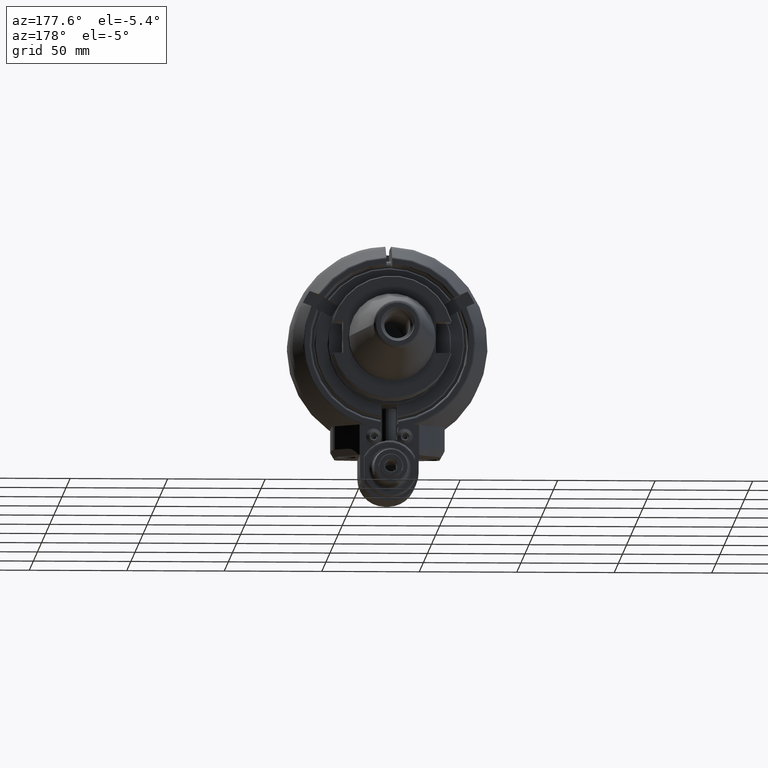
[diagram: clean part render]
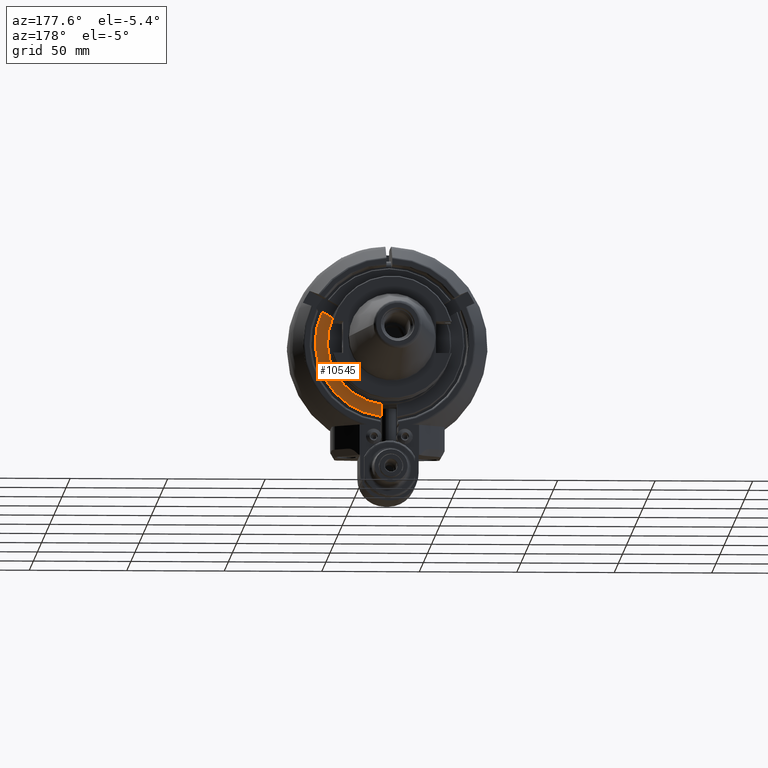
[diagram: same view with one face highlighted and labeled with its STEP entity id]
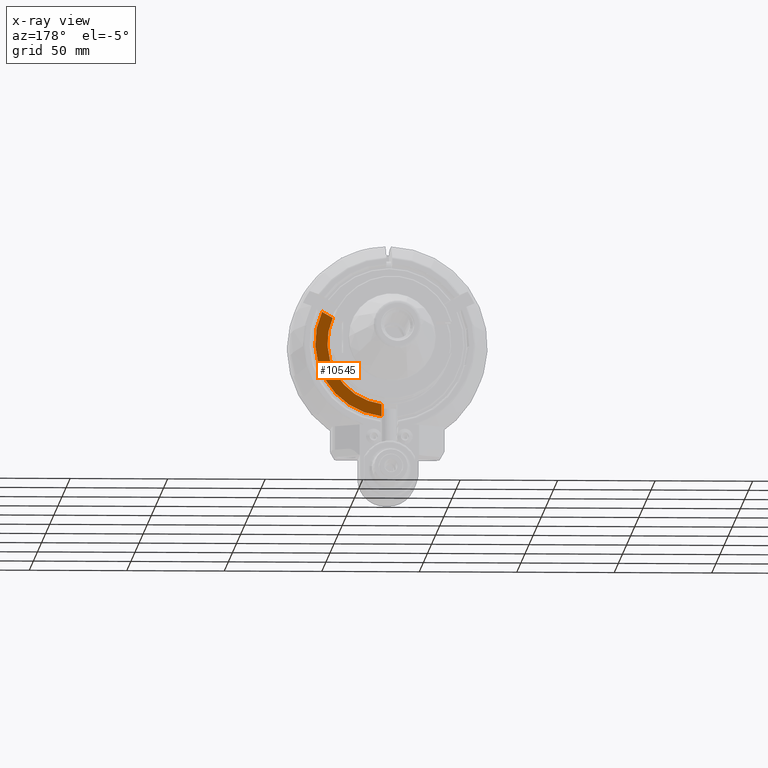
[diagram: x-ray of the same camera — body ghosted, the highlighted face saturated]
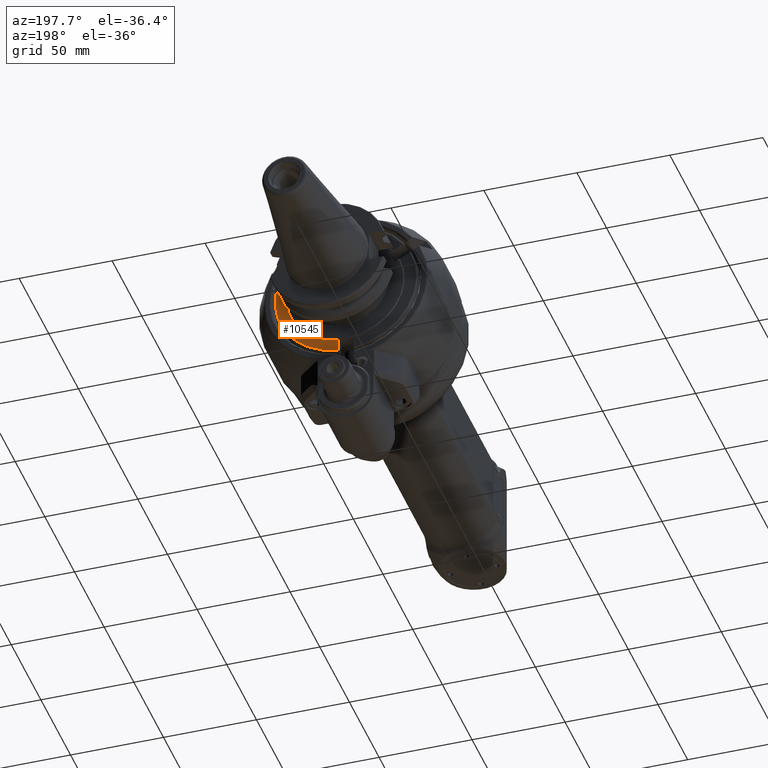
[diagram: same view with one face highlighted and labeled with its STEP entity id]
A machine part, auxiliary view. The second image highlights one B-rep face of the part: STEP entity #10545.
The next image is the same camera in x-ray: the body ghosted, the highlighted face saturated — about 0% of this face is hidden behind the body in this view.
A second angle (auxiliary view) of the same face is appended — the face is thin or edge-on in the first view.
In plain terms, the highlighted planar face has unit normal (0, 1, 0).
Its self-contained STEP definition (entity closure, byte-faithful):
#783=PLANE('',#11795);
#1338=FACE_OUTER_BOUND('',#2038,.T.);
#2038=EDGE_LOOP('',(#9142,#9143,#9144,#9145));
#2673=LINE('',#20588,#3349);
#2708=LINE('',#20786,#3384);
#3349=VECTOR('',#14436,10.);
#3384=VECTOR('',#14565,6.28197553114879);
#3991=CIRCLE('',#11735,31.75);
#4016=CIRCLE('',#11796,38.);
#4873=VERTEX_POINT('',#20585);
#4874=VERTEX_POINT('',#20587);
#4887=VERTEX_POINT('',#20631);
#4927=VERTEX_POINT('',#20782);
#6267=EDGE_CURVE('',#4874,#4873,#2673,.T.);
#6284=EDGE_CURVE('',#4873,#4887,#3991,.T.);
#6346=EDGE_CURVE('',#4887,#4927,#2708,.T.);
#6376=EDGE_CURVE('',#4927,#4874,#4016,.T.);
#9142=ORIENTED_EDGE('',*,*,#6376,.T.);
#9143=ORIENTED_EDGE('',*,*,#6267,.T.);
#9144=ORIENTED_EDGE('',*,*,#6284,.T.);
#9145=ORIENTED_EDGE('',*,*,#6346,.T.);
#10545=ADVANCED_FACE('',(#1338),#783,.T.);
#11735=AXIS2_PLACEMENT_3D('',#20635,#14455,#14456);
#11795=AXIS2_PLACEMENT_3D('',#20945,#14621,#14622);
#11796=AXIS2_PLACEMENT_3D('',#20946,#14623,#14624);
#14436=DIRECTION('',(0.,0.,1.));
#14455=DIRECTION('center_axis',(0.,-1.,0.));
#14456=DIRECTION('ref_axis',(0.86926923622807,0.,0.494338947431283));
#14565=DIRECTION('',(0.866025403784429,0.,0.500000000000017));
#14621=DIRECTION('center_axis',(0.,1.,0.));
#14622=DIRECTION('ref_axis',(-0.86926923622807,0.,-0.494338947431283));
#14623=DIRECTION('center_axis',(0.,1.,0.));
#14624=DIRECTION('ref_axis',(0.908396800327097,0.,0.418109140243899));
#20585=CARTESIAN_POINT('',(3.99951055760265,39.4985543943407,-31.4985430348102));
#20587=CARTESIAN_POINT('',(4.,39.5,-37.78888725538));
#20588=CARTESIAN_POINT('',(4.,39.5,-24.55152642015));
#20631=CARTESIAN_POINT('',(29.0787280165,39.5,12.74715956369));
#20635=CARTESIAN_POINT('Origin',(0.,39.5,0.));
#20782=CARTESIAN_POINT('',(34.51907841243,39.5,15.88814732927));
#20786=CARTESIAN_POINT('',(29.0787280165,39.5,12.74715956369));
#20945=CARTESIAN_POINT('Origin',(-30.95404959954,39.5,-17.6030528403));
#20946=CARTESIAN_POINT('Origin',(0.,39.5,0.));